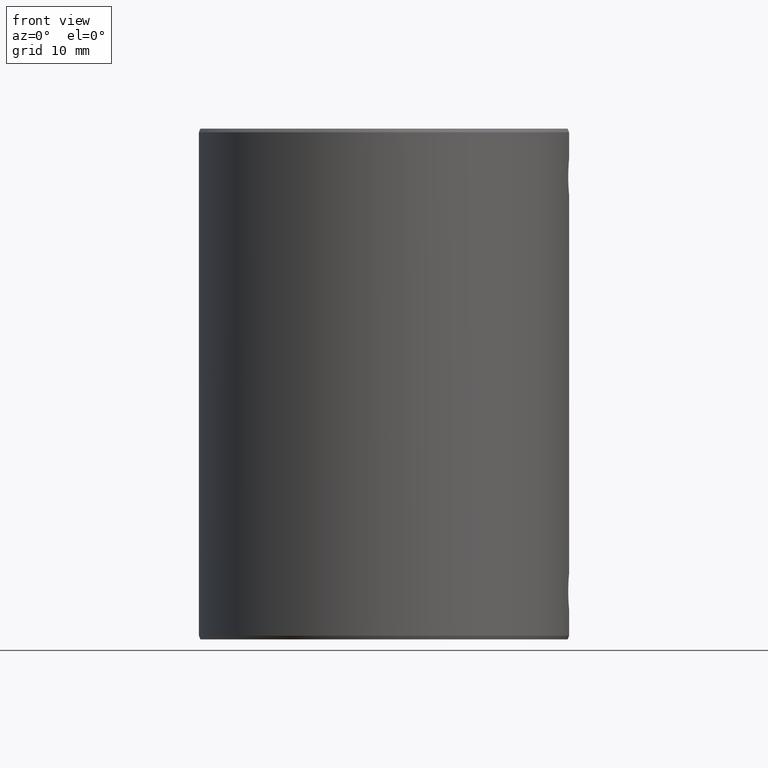
[diagram: clean part render]
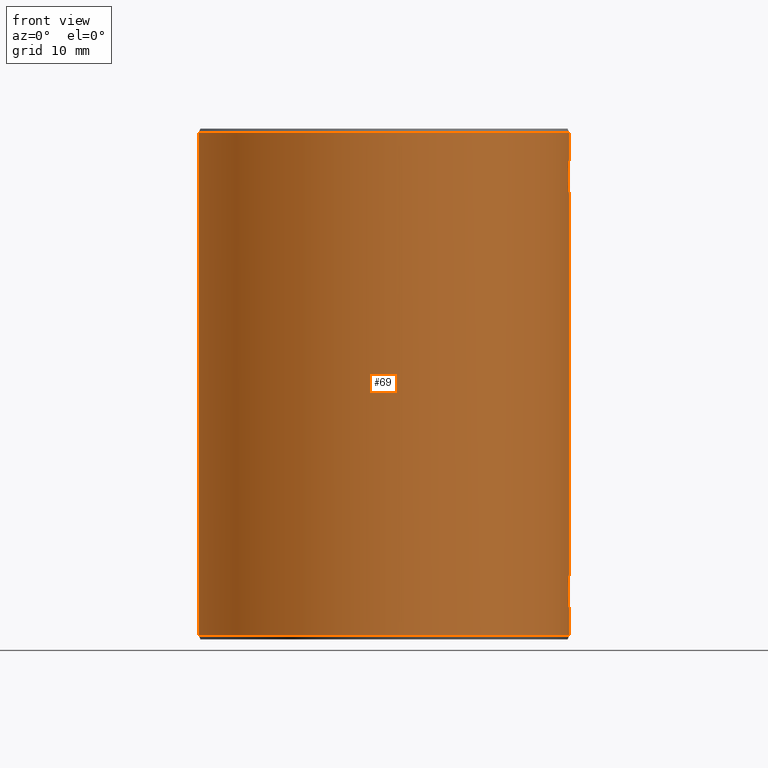
[diagram: same view with one face highlighted and labeled with its STEP entity id]
A machine part, front view. The second image highlights one B-rep face of the part: STEP entity #69.
In plain terms, the highlighted cylindrical surface (partial cylindrical patch) has radius 25 mm, axis along (-0, -0, -1).
Its self-contained STEP definition (entity closure, byte-faithful):
#6 = CARTESIAN_POINT ( 'NONE',  ( 24.90680878649008200, -2.157434387432355400, 5.436881676382287600 ) ) ;
#16 = CARTESIAN_POINT ( 'NONE',  ( 24.89083734895105200, -2.336804912568216000, 7.130137118677600600 ) ) ;
#25 = ORIENTED_EDGE ( 'NONE', *, *, #207, .F. ) ;
#33 = CARTESIAN_POINT ( 'NONE',  ( 25.00000000000000000, 3.061617015060971000E-015, 60.10000000000000100 ) ) ;
#46 = CARTESIAN_POINT ( 'NONE',  ( 24.90682330235476600, -2.157258275708513500, 63.56332931344044100 ) ) ;
#57 = VECTOR ( 'NONE', #728, 1000.000000000000000 ) ;
#60 = CARTESIAN_POINT ( 'NONE',  ( 25.00000000000000000, -7.960204194457795500E-016, 8.900000000000000400 ) ) ;
#65 = CARTESIAN_POINT ( 'NONE',  ( 24.93478284463213500, -1.808009764021271300, 8.086060030250440200 ) ) ;
#67 = CARTESIAN_POINT ( 'NONE',  ( 24.94983958672400000, -1.586757515342943000, 8.307397663453445000 ) ) ;
#69 = ADVANCED_FACE ( 'NONE', ( #527 ), #431, .T. ) ;
#70 = VERTEX_POINT ( 'NONE', #60 ) ;
#73 = CARTESIAN_POINT ( 'NONE',  ( 24.89184912457955800, -2.323100469349337800, 5.877229057580037400 ) ) ;
#75 = DIRECTION ( 'NONE',  ( 1.000000000000000000, 0.0000000000000000000, 0.0000000000000000000 ) ) ;
#115 = CARTESIAN_POINT ( 'NONE',  ( 24.93469087965861100, -1.809364586544539100, 60.91528846702932000 ) ) ;
#119 = ORIENTED_EDGE ( 'NONE', *, *, #163, .T. ) ;
#120 = CARTESIAN_POINT ( 'NONE',  ( 24.95743015555597900, -1.464107681211960900, 60.59190603845464600 ) ) ;
#123 = CARTESIAN_POINT ( 'NONE',  ( 24.95747812043215700, -1.463332940315724300, 8.408730474432315900 ) ) ;
#124 = CARTESIAN_POINT ( 'NONE',  ( 25.00000000000000000, -0.1566809821527087900, 4.099999999999999600 ) ) ;
#128 = CARTESIAN_POINT ( 'NONE',  ( 24.92729154330252700, -1.907322935467900700, 7.965272405578529600 ) ) ;
#130 = CARTESIAN_POINT ( 'NONE',  ( 24.94993860879596400, -1.585298990248902500, 4.691150099845883900 ) ) ;
#139 = DIRECTION ( 'NONE',  ( 0.0000000000000000000, 0.0000000000000000000, -1.000000000000000000 ) ) ;
#144 = CARTESIAN_POINT ( 'NONE',  ( 0.0000000000000000000, 0.0000000000000000000, 68.50000000000002800 ) ) ;
#154 = CARTESIAN_POINT ( 'NONE',  ( 24.99274324011628000, -0.6215614222012457700, 64.82338924481722100 ) ) ;
#157 = CARTESIAN_POINT ( 'NONE',  ( 24.98843731712242200, -0.7740445757105877100, 64.77719177326763100 ) ) ;
#159 = CARTESIAN_POINT ( 'NONE',  ( 24.88452789115881800, -2.400056590455626800, 62.34423272371462600 ) ) ;
#163 = EDGE_CURVE ( 'NONE', #766, #506, #333, .T. ) ;
#166 = CARTESIAN_POINT ( 'NONE',  ( 24.97131838510964000, -1.204238091543308600, 60.41811515997020600 ) ) ;
#167 = CARTESIAN_POINT ( 'NONE',  ( 24.90680878649008500, -2.157434387432358500, 61.43688167638229200 ) ) ;
#171 = B_SPLINE_CURVE_WITH_KNOTS ( 'NONE', 3,
 ( #481, #421, #489, #687, #298, #486, #282, #123, #67, #65, #128, #354, #366, #16, #359, #682, #553, #73, #618, #6, #496, #290, #296, #130, #228, #749, #220, #285, #175, #626, #124, #566 ),
 .UNSPECIFIED., .F., .F.,
 ( 4, 2, 2, 2, 2, 2, 2, 2, 2, 2, 2, 2, 2, 2, 2, 4 ),
 ( 0.0000000000000000000, 0.0004692384122092192500, 0.0009384768244184385100, 0.001407715236627657700, 0.001876953648836877000, 0.002346192061046095700, 0.002815430473255312400, 0.003753907297673744100, 0.004223145709882960800, 0.004692384122092177500, 0.005161622534301394200, 0.005630860946510611800, 0.006100099358719829300, 0.006569337770929046900, 0.007038576183138264500, 0.007507814595347481200 ),
 .UNSPECIFIED. ) ;
#175 = CARTESIAN_POINT ( 'NONE',  ( 24.99269610355392100, -0.6235574177795527600, 4.177115368944690500 ) ) ;
#192 = ORIENTED_EDGE ( 'NONE', *, *, #388, .T. ) ;
#195 = EDGE_CURVE ( 'NONE', #506, #440, #301, .T. ) ;
#199 = CIRCLE ( 'NONE', #416, 25.00000000000000000 ) ;
#204 = CARTESIAN_POINT ( 'NONE',  ( 24.97774248692006800, -1.064671223454409100, 64.65666932174893600 ) ) ;
#206 = CARTESIAN_POINT ( 'NONE',  ( 24.93478284463212800, -1.808009764021275100, 64.08606003025042200 ) ) ;
#207 = EDGE_CURVE ( 'NONE', #361, #552, #535, .T. ) ;
#213 = CARTESIAN_POINT ( 'NONE',  ( 25.00000000000000000, 3.061616997868383000E-015, 69.00000000000000000 ) ) ;
#215 = CARTESIAN_POINT ( 'NONE',  ( 24.97777575192123900, -1.063896460731817500, 60.34294669262610000 ) ) ;
#220 = CARTESIAN_POINT ( 'NONE',  ( 24.97777575192123600, -1.063896460731816000, 4.342946692626102700 ) ) ;
#223 = VERTEX_POINT ( 'NONE', #33 ) ;
#228 = CARTESIAN_POINT ( 'NONE',  ( 24.95743015555597900, -1.464107681211956400, 4.591906038454635700 ) ) ;
#269 = CARTESIAN_POINT ( 'NONE',  ( 25.00000000000000000, 3.061616997868383000E-015, 0.4999999999999726900 ) ) ;
#270 = CARTESIAN_POINT ( 'NONE',  ( 25.00000000000000000, 3.061616997868383000E-015, 69.00000000000000000 ) ) ;
#279 = CARTESIAN_POINT ( 'NONE',  ( 24.98846425448591900, -0.7731826399380984400, 60.22251382983150600 ) ) ;
#282 = CARTESIAN_POINT ( 'NONE',  ( 24.97140484761392900, -1.202496304620575200, 8.582930136997767100 ) ) ;
#285 = CARTESIAN_POINT ( 'NONE',  ( 24.98846425448591900, -0.7731826399380978800, 4.222513829831515700 ) ) ;
#290 = CARTESIAN_POINT ( 'NONE',  ( 24.92719432543051300, -1.908553743024077800, 5.036489025316491600 ) ) ;
#296 = CARTESIAN_POINT ( 'NONE',  ( 24.93469087965861100, -1.809364586544532900, 4.915288467029322200 ) ) ;
#298 = CARTESIAN_POINT ( 'NONE',  ( 24.98843731712241800, -0.7740445757105802700, 8.777191773267629700 ) ) ;
#301 = LINE ( 'NONE', #449, #430 ) ;
#305 = CARTESIAN_POINT ( 'NONE',  ( 25.00000000000000000, -6.938893903907228400E-015, 64.90000000000000600 ) ) ;
#320 = CARTESIAN_POINT ( 'NONE',  ( 0.0000000000000000000, 0.0000000000000000000, 69.00000000000000000 ) ) ;
#328 = EDGE_CURVE ( 'NONE', #70, #361, #171, .T. ) ;
#333 = CIRCLE ( 'NONE', #711, 25.00000000000000000 ) ;
#336 = CARTESIAN_POINT ( 'NONE',  ( 24.94983958672399600, -1.586757515342945800, 64.30739766345344300 ) ) ;
#343 = CARTESIAN_POINT ( 'NONE',  ( -25.00000000000000000, 0.0000000000000000000, 0.4999999999999726900 ) ) ;
#346 = CARTESIAN_POINT ( 'NONE',  ( 25.00000000000000000, 3.061616997868383000E-015, 68.50000000000002800 ) ) ;
#350 = CARTESIAN_POINT ( 'NONE',  ( 24.92719432543050900, -1.908553743024082900, 61.03648902531649200 ) ) ;
#354 = CARTESIAN_POINT ( 'NONE',  ( 24.91324600546113300, -2.082766894383097700, 7.702907339063805200 ) ) ;
#357 = ORIENTED_EDGE ( 'NONE', *, *, #437, .F. ) ;
#359 = CARTESIAN_POINT ( 'NONE',  ( 24.88454431040539600, -2.399886346573843800, 6.814143041514102900 ) ) ;
#361 = VERTEX_POINT ( 'NONE', #756 ) ;
#366 = CARTESIAN_POINT ( 'NONE',  ( 24.90682330235475600, -2.157258275708509500, 7.563329313440439300 ) ) ;
#383 = DIRECTION ( 'NONE',  ( -0.0000000000000000000, -0.0000000000000000000, -1.000000000000000000 ) ) ;
#388 = EDGE_CURVE ( 'NONE', #440, #552, #199, .T. ) ;
#390 = CARTESIAN_POINT ( 'NONE',  ( 25.00000000000000000, 3.061616997868383000E-015, 69.00000000000000000 ) ) ;
#391 = DIRECTION ( 'NONE',  ( -0.0000000000000000000, -0.0000000000000000000, -1.000000000000000000 ) ) ;
#404 = CARTESIAN_POINT ( 'NONE',  ( 24.92729154330252700, -1.907322935467908200, 63.96527240557853100 ) ) ;
#406 = VERTEX_POINT ( 'NONE', #305 ) ;
#410 = CARTESIAN_POINT ( 'NONE',  ( 24.88604947718394200, -2.384426566425551300, 62.18512004392492500 ) ) ;
#416 = AXIS2_PLACEMENT_3D ( 'NONE', #630, #697, #75 ) ;
#419 = DIRECTION ( 'NONE',  ( -1.000000000000000000, 0.0000000000000000000, 0.0000000000000000000 ) ) ;
#421 = CARTESIAN_POINT ( 'NONE',  ( 25.00000000000000000, -0.1586718824114786400, 8.899999999999998600 ) ) ;
#430 = VECTOR ( 'NONE', #772, 1000.000000000000000 ) ;
#431 = CYLINDRICAL_SURFACE ( 'NONE', #508, 25.00000000000000000 ) ;
#437 = EDGE_CURVE ( 'NONE', #766, #406, #765, .T. ) ;
#440 = VERTEX_POINT ( 'NONE', #343 ) ;
#449 = CARTESIAN_POINT ( 'NONE',  ( -25.00000000000000000, 0.0000000000000000000, 69.00000000000000000 ) ) ;
#453 = VECTOR ( 'NONE', #665, 1000.000000000000000 ) ;
#468 = CARTESIAN_POINT ( 'NONE',  ( 24.89083734895104500, -2.336804912568221300, 63.13013711867759500 ) ) ;
#471 = CARTESIAN_POINT ( 'NONE',  ( -25.00000000000000000, 0.0000000000000000000, 68.50000000000002800 ) ) ;
#477 = CARTESIAN_POINT ( 'NONE',  ( 24.89609501629660900, -2.277740108613396200, 61.72757284893576500 ) ) ;
#479 = CARTESIAN_POINT ( 'NONE',  ( 24.99269610355392500, -0.6235574177795534200, 60.17711536894469800 ) ) ;
#481 = CARTESIAN_POINT ( 'NONE',  ( 25.00000000000000000, -7.960204194457795500E-016, 8.900000000000000400 ) ) ;
#486 = CARTESIAN_POINT ( 'NONE',  ( 24.97774248692006100, -1.064671223454401100, 8.656669321748902100 ) ) ;
#489 = CARTESIAN_POINT ( 'NONE',  ( 24.99849062833339300, -0.3146737565709027400, 8.884419554404519900 ) ) ;
#496 = CARTESIAN_POINT ( 'NONE',  ( 24.91328297703562800, -2.082288556836715100, 5.296456843691443900 ) ) ;
#505 = ORIENTED_EDGE ( 'NONE', *, *, #195, .T. ) ;
#506 = VERTEX_POINT ( 'NONE', #471 ) ;
#508 = AXIS2_PLACEMENT_3D ( 'NONE', #320, #391, #419 ) ;
#518 = LINE ( 'NONE', #270, #57 ) ;
#527 = FACE_OUTER_BOUND ( 'NONE', #571, .T. ) ;
#535 = LINE ( 'NONE', #390, #794 ) ;
#538 = CARTESIAN_POINT ( 'NONE',  ( 24.88454431040539900, -2.399886346573852200, 62.81414304151410000 ) ) ;
#543 = CARTESIAN_POINT ( 'NONE',  ( 25.00000000000000000, 3.061617015060971000E-015, 60.10000000000000100 ) ) ;
#552 = VERTEX_POINT ( 'NONE', #269 ) ;
#553 = CARTESIAN_POINT ( 'NONE',  ( 24.88604947718394200, -2.384426566425544600, 6.185120043924921000 ) ) ;
#566 = CARTESIAN_POINT ( 'NONE',  ( 25.00000000000000000, 3.061617015062548800E-015, 4.099999999999999600 ) ) ;
#571 = EDGE_LOOP ( 'NONE', ( #357, #119, #505, #192, #25, #623, #663, #677 ) ) ;
#577 = EDGE_CURVE ( 'NONE', #406, #223, #730, .T. ) ;
#599 = CARTESIAN_POINT ( 'NONE',  ( 24.99849062833338900, -0.3146737565709090700, 64.88441955440450200 ) ) ;
#605 = CARTESIAN_POINT ( 'NONE',  ( 24.89184912457954700, -2.323100469349342700, 61.87722905758003100 ) ) ;
#611 = CARTESIAN_POINT ( 'NONE',  ( 24.99847862764519100, -0.3158301458600342200, 60.11570383940524200 ) ) ;
#615 = CARTESIAN_POINT ( 'NONE',  ( 24.94993860879597100, -1.585298990248908500, 60.69115009984589200 ) ) ;
#618 = CARTESIAN_POINT ( 'NONE',  ( 24.89609501629660600, -2.277740108613390800, 5.727572848935762900 ) ) ;
#623 = ORIENTED_EDGE ( 'NONE', *, *, #328, .F. ) ;
#626 = CARTESIAN_POINT ( 'NONE',  ( 24.99847862764518100, -0.3158301458600342700, 4.115703839405243900 ) ) ;
#630 = CARTESIAN_POINT ( 'NONE',  ( 0.0000000000000000000, 0.0000000000000000000, 0.4999999999999726900 ) ) ;
#636 = DIRECTION ( 'NONE',  ( 1.000000000000000000, 0.0000000000000000000, 0.0000000000000000000 ) ) ;
#663 = ORIENTED_EDGE ( 'NONE', *, *, #696, .F. ) ;
#665 = DIRECTION ( 'NONE',  ( -0.0000000000000000000, -0.0000000000000000000, -1.000000000000000000 ) ) ;
#669 = CARTESIAN_POINT ( 'NONE',  ( 24.97140484761393300, -1.202496304620579400, 64.58293013699777400 ) ) ;
#675 = CARTESIAN_POINT ( 'NONE',  ( 25.00000000000000000, -6.938893903907228400E-015, 64.90000000000000600 ) ) ;
#677 = ORIENTED_EDGE ( 'NONE', *, *, #577, .F. ) ;
#678 = CARTESIAN_POINT ( 'NONE',  ( 25.00000000000000000, -0.1586718824114848300, 64.90000000000002000 ) ) ;
#682 = CARTESIAN_POINT ( 'NONE',  ( 24.88452789115881800, -2.400056590455620600, 6.344232723714631200 ) ) ;
#687 = CARTESIAN_POINT ( 'NONE',  ( 24.99274324011628300, -0.6215614222012387800, 8.823389244817201800 ) ) ;
#696 = EDGE_CURVE ( 'NONE', #223, #70, #518, .T. ) ;
#697 = DIRECTION ( 'NONE',  ( -0.0000000000000000000, -0.0000000000000000000, 1.000000000000000000 ) ) ;
#711 = AXIS2_PLACEMENT_3D ( 'NONE', #144, #139, #636 ) ;
#728 = DIRECTION ( 'NONE',  ( -0.0000000000000000000, -0.0000000000000000000, -1.000000000000000000 ) ) ;
#730 = B_SPLINE_CURVE_WITH_KNOTS ( 'NONE', 3,
 ( #675, #678, #599, #154, #157, #204, #669, #793, #336, #206, #404, #790, #46, #468, #538, #159, #410, #605, #477, #167, #738, #350, #115, #615, #120, #166, #215, #279, #479, #611, #798, #543 ),
 .UNSPECIFIED., .F., .F.,
 ( 4, 2, 2, 2, 2, 2, 2, 2, 2, 2, 2, 2, 2, 2, 2, 4 ),
 ( 0.0000000000000000000, 0.0004692384122092182200, 0.0009384768244184364500, 0.001407715236627654700, 0.001876953648836872900, 0.002346192061046090900, 0.002815430473255309300, 0.003753907297673744900, 0.004223145709882963400, 0.004692384122092180900, 0.005161622534301399400, 0.005630860946510617800, 0.006100099358719836300, 0.006569337770929054700, 0.007038576183138272300, 0.007507814595347489900 ),
 .UNSPECIFIED. ) ;
#738 = CARTESIAN_POINT ( 'NONE',  ( 24.91328297703563200, -2.082288556836721300, 61.29645684369144500 ) ) ;
#749 = CARTESIAN_POINT ( 'NONE',  ( 24.97131838510964000, -1.204238091543304600, 4.418115159970207100 ) ) ;
#756 = CARTESIAN_POINT ( 'NONE',  ( 25.00000000000000000, 3.061617015062548800E-015, 4.099999999999999600 ) ) ;
#765 = LINE ( 'NONE', #213, #453 ) ;
#766 = VERTEX_POINT ( 'NONE', #346 ) ;
#772 = DIRECTION ( 'NONE',  ( -0.0000000000000000000, -0.0000000000000000000, -1.000000000000000000 ) ) ;
#790 = CARTESIAN_POINT ( 'NONE',  ( 24.91324600546113600, -2.082766894383104800, 63.70290733906382000 ) ) ;
#793 = CARTESIAN_POINT ( 'NONE',  ( 24.95747812043215700, -1.463332940315729400, 64.40873047443230300 ) ) ;
#794 = VECTOR ( 'NONE', #383, 1000.000000000000000 ) ;
#798 = CARTESIAN_POINT ( 'NONE',  ( 25.00000000000000400, -0.1566809821527094800, 60.09999999999999400 ) ) ;